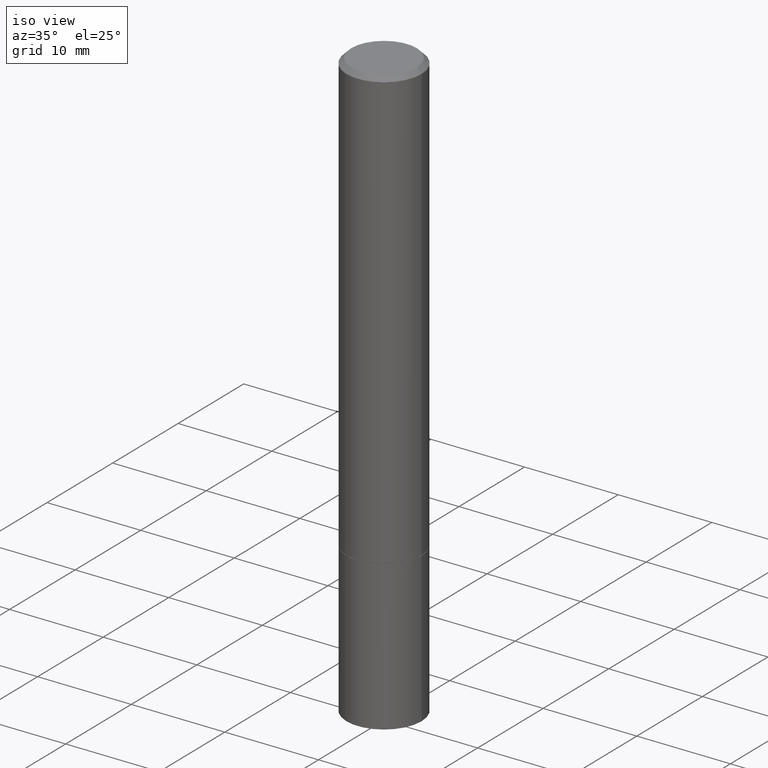
[diagram: clean part render]
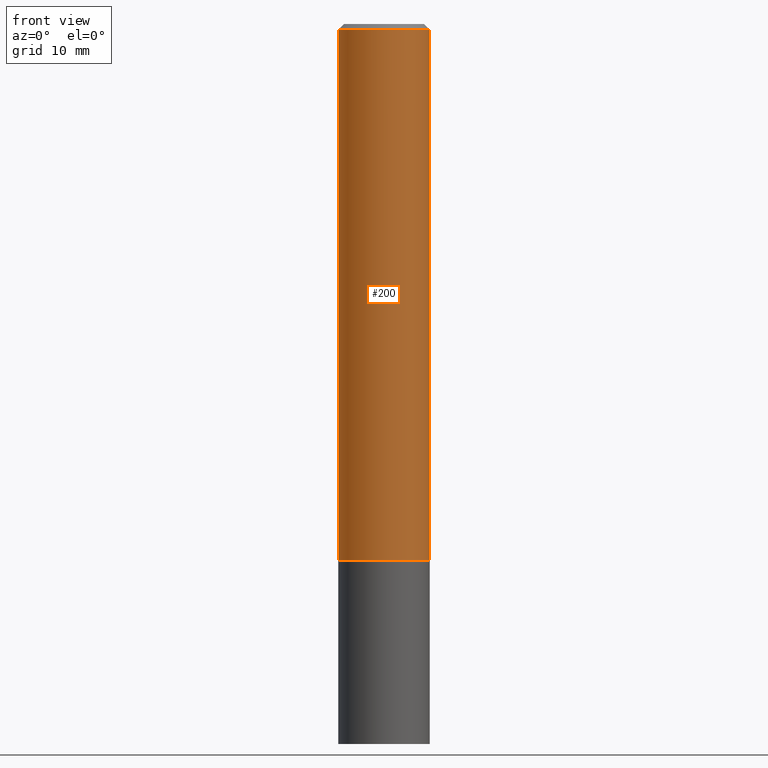
[diagram: tour spotlight — one face highlighted and labeled with its STEP entity id]
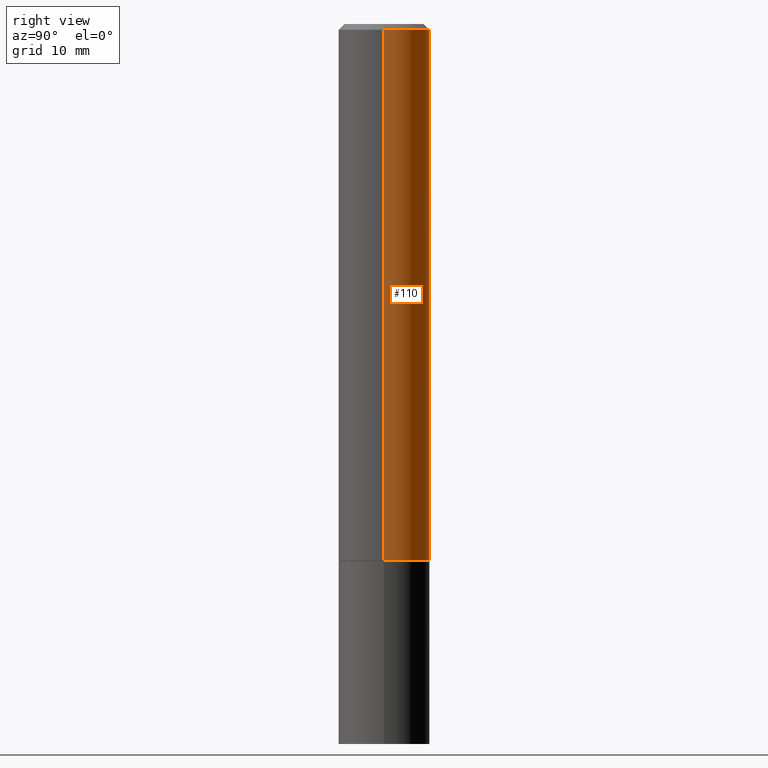
[diagram: tour spotlight — one face highlighted and labeled with its STEP entity id]
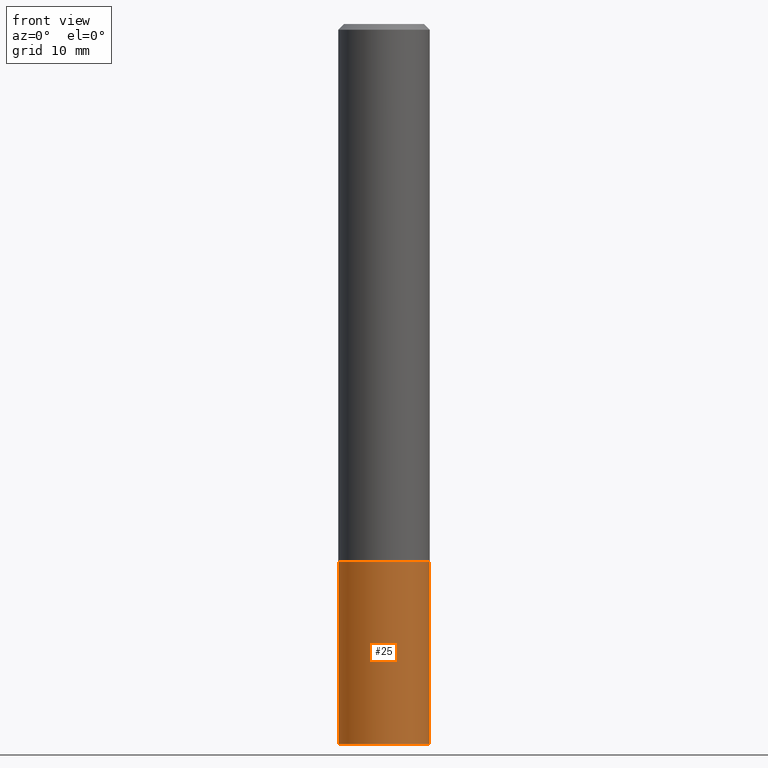
[diagram: tour spotlight — one face highlighted and labeled with its STEP entity id]
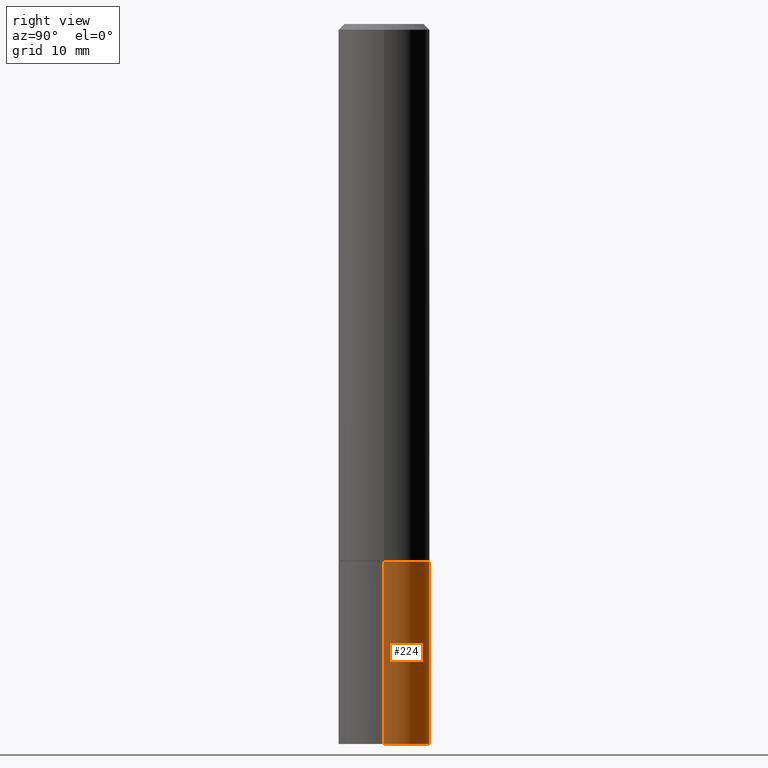
[diagram: tour spotlight — one face highlighted and labeled with its STEP entity id]
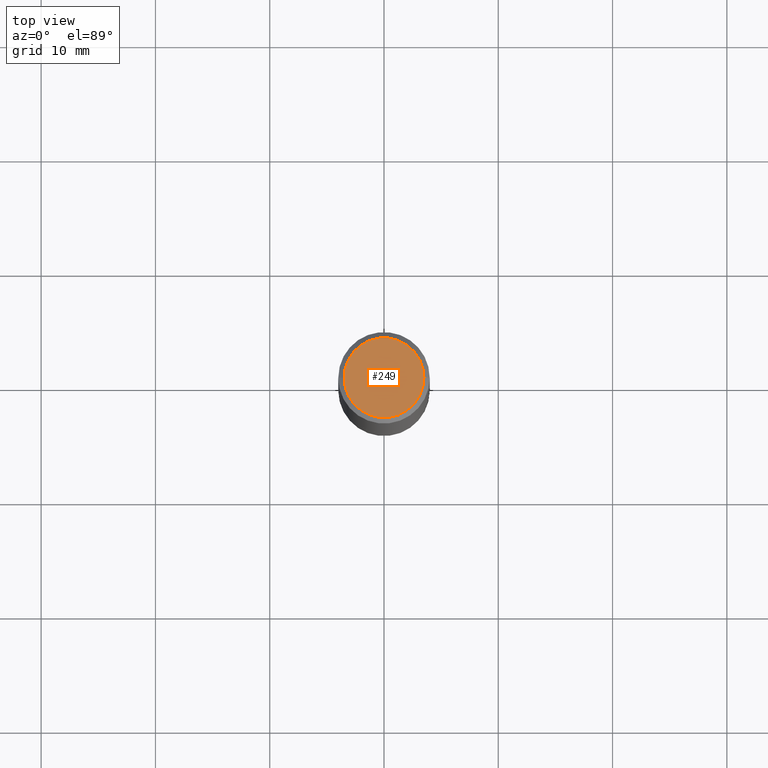
[diagram: tour spotlight — one face highlighted and labeled with its STEP entity id]
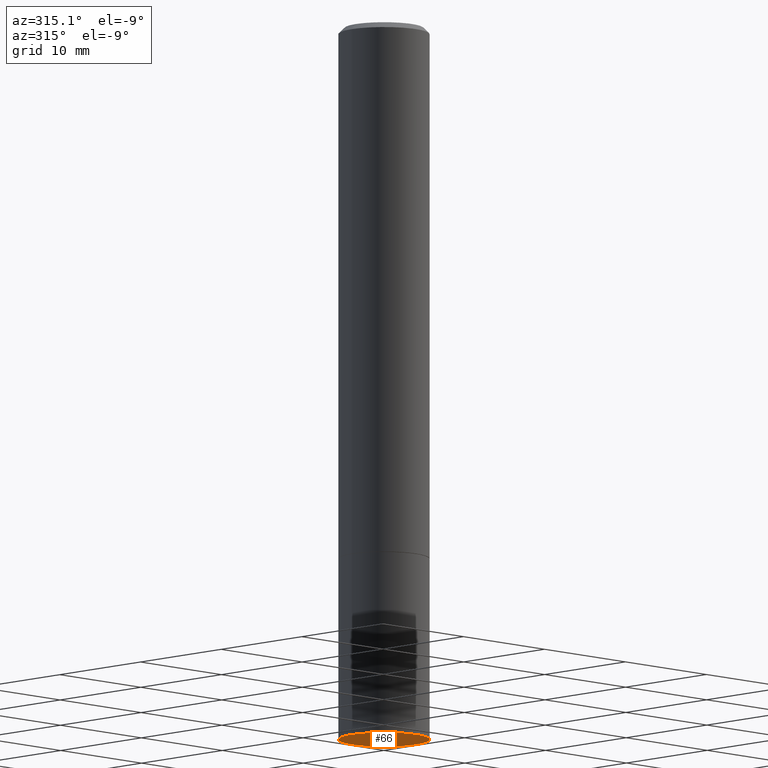
[diagram: tour spotlight — one face highlighted and labeled with its STEP entity id]
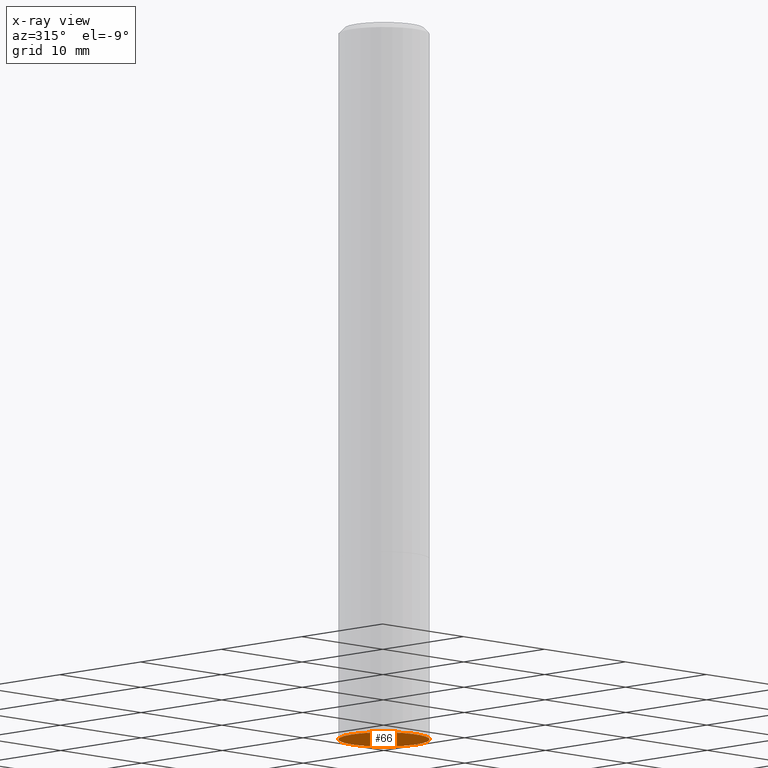
[diagram: x-ray of the same camera — body ghosted, this tour face saturated]
A machine part: a face-by-face anatomy tour. The part has 12 B-rep faces; the first image is the clean iso view, then the 6 largest visible faces are spotlighted one at a time (largest first), each with its STEP entity span.

Face 1 — front view, entity #200. In plain terms, the highlighted cylindrical surface (partial cylindrical patch) has radius 4.0005 mm, axis along (-0, 0, 1).
Definition (entity closure, byte-faithful):
#6 = CARTESIAN_POINT ( 'NONE',  ( 4.890937612370281041E-31, -6.982962677686302702E-17, -0.02000000000000003511 ) ) ;
#11 = EDGE_CURVE ( 'NONE', #80, #142, #336, .T. ) ;
#13 = CYLINDRICAL_SURFACE ( 'NONE', #55, 0.1574999999999998901 ) ;
#17 = CARTESIAN_POINT ( 'NONE',  ( 0.1574999999999998901, -1.099816621735586297E-15, 7.679978421878593829E-30 ) ) ;
#41 = EDGE_LOOP ( 'NONE', ( #161, #297, #130, #119 ) ) ;
#47 = DIRECTION ( 'NONE',  ( 1.000000000000000000, -6.982962677686266711E-15, 4.876176775795935793E-29 ) ) ;
#55 = AXIS2_PLACEMENT_3D ( 'NONE', #233, #351, #47 ) ;
#61 = DIRECTION ( 'NONE',  ( 1.000000000000000000, -6.982962677686265922E-15, 0.000000000000000000 ) ) ;
#70 = VERTEX_POINT ( 'NONE', #236 ) ;
#80 = VERTEX_POINT ( 'NONE', #153 ) ;
#82 = AXIS2_PLACEMENT_3D ( 'NONE', #6, #120, #61 ) ;
#87 = CARTESIAN_POINT ( 'NONE',  ( -0.1574999999999998901, 1.119104808822157012E-15, -7.747322767151471379E-30 ) ) ;
#89 = CIRCLE ( 'NONE', #82, 0.1574999999999998346 ) ;
#119 = ORIENTED_EDGE ( 'NONE', *, *, #178, .F. ) ;
#120 = DIRECTION ( 'NONE',  ( -2.445468806185136597E-29, 3.491481338843145583E-15, 1.000000000000000000 ) ) ;
#130 = ORIENTED_EDGE ( 'NONE', *, *, #309, .T. ) ;
#142 = VERTEX_POINT ( 'NONE', #292 ) ;
#153 = CARTESIAN_POINT ( 'NONE',  ( -0.1575000000000000011, -2.144382798594528569E-15, -1.849400000000000155 ) ) ;
#156 = FACE_OUTER_BOUND ( 'NONE', #41, .T. ) ;
#159 = VERTEX_POINT ( 'NONE', #206 ) ;
#161 = ORIENTED_EDGE ( 'NONE', *, *, #11, .F. ) ;
#175 = VECTOR ( 'NONE', #365, 39.37007874015748143 ) ;
#178 = EDGE_CURVE ( 'NONE', #142, #70, #89, .T. ) ;
#200 = ADVANCED_FACE ( 'NONE', ( #156 ), #13, .T. ) ;
#205 = EDGE_CURVE ( 'NONE', #80, #159, #339, .T. ) ;
#206 = CARTESIAN_POINT ( 'NONE',  ( 0.1575000000000000011, -7.556962209792101260E-15, -1.849400000000000155 ) ) ;
#218 = DIRECTION ( 'NONE',  ( -2.445468806185136597E-29, 3.491481338843145583E-15, 1.000000000000000000 ) ) ;
#233 = CARTESIAN_POINT ( 'NONE',  ( 0.000000000000000000, 0.000000000000000000, 0.000000000000000000 ) ) ;
#236 = CARTESIAN_POINT ( 'NONE',  ( 0.1574999999999998346, -1.150358061425878091E-15, -0.02000000000000003511 ) ) ;
#239 = VECTOR ( 'NONE', #240, 39.37007874015748143 ) ;
#240 = DIRECTION ( 'NONE',  ( -2.445468806185136877E-29, 3.491481338843145188E-15, 1.000000000000000000 ) ) ;
#242 = DIRECTION ( 'NONE',  ( 1.000000000000000000, -6.982962677686268288E-15, 0.000000000000000000 ) ) ;
#270 = AXIS2_PLACEMENT_3D ( 'NONE', #272, #218, #242 ) ;
#272 = CARTESIAN_POINT ( 'NONE',  ( 4.522650010158792351E-29, -6.457145588056513780E-15, -1.849400000000000155 ) ) ;
#292 = CARTESIAN_POINT ( 'NONE',  ( -0.1574999999999998346, 1.029986994958722604E-15, -0.02000000000000003511 ) ) ;
#297 = ORIENTED_EDGE ( 'NONE', *, *, #205, .T. ) ;
#309 = EDGE_CURVE ( 'NONE', #159, #70, #325, .T. ) ;
#325 = LINE ( 'NONE', #17, #239 ) ;
#336 = LINE ( 'NONE', #87, #175 ) ;
#339 = CIRCLE ( 'NONE', #270, 0.1575000000000000011 ) ;
#351 = DIRECTION ( 'NONE',  ( -2.445468806185136597E-29, 3.491481338843145583E-15, 1.000000000000000000 ) ) ;
#365 = DIRECTION ( 'NONE',  ( -2.445468806185136877E-29, 3.491481338843145188E-15, 1.000000000000000000 ) ) ;

Face 2 — right view, entity #110. In plain terms, the highlighted cylindrical surface (partial cylindrical patch) has radius 4.0005 mm, axis along (-0, 0, 1).
Definition (entity closure, byte-faithful):
#4 = ORIENTED_EDGE ( 'NONE', *, *, #348, .T. ) ;
#11 = EDGE_CURVE ( 'NONE', #80, #142, #336, .T. ) ;
#17 = CARTESIAN_POINT ( 'NONE',  ( 0.1574999999999998901, -1.099816621735586297E-15, 7.679978421878593829E-30 ) ) ;
#40 = CARTESIAN_POINT ( 'NONE',  ( 0.000000000000000000, 0.000000000000000000, 0.000000000000000000 ) ) ;
#68 = CIRCLE ( 'NONE', #256, 0.1574999999999998346 ) ;
#70 = VERTEX_POINT ( 'NONE', #236 ) ;
#80 = VERTEX_POINT ( 'NONE', #153 ) ;
#87 = CARTESIAN_POINT ( 'NONE',  ( -0.1574999999999998901, 1.119104808822157012E-15, -7.747322767151471379E-30 ) ) ;
#94 = AXIS2_PLACEMENT_3D ( 'NONE', #323, #244, #107 ) ;
#97 = DIRECTION ( 'NONE',  ( -2.445468806185136597E-29, 3.491481338843145583E-15, 1.000000000000000000 ) ) ;
#107 = DIRECTION ( 'NONE',  ( 1.000000000000000000, -6.982962677686268288E-15, 0.000000000000000000 ) ) ;
#110 = ADVANCED_FACE ( 'NONE', ( #210 ), #344, .T. ) ;
#127 = ORIENTED_EDGE ( 'NONE', *, *, #11, .T. ) ;
#142 = VERTEX_POINT ( 'NONE', #292 ) ;
#153 = CARTESIAN_POINT ( 'NONE',  ( -0.1575000000000000011, -2.144382798594528569E-15, -1.849400000000000155 ) ) ;
#157 = ORIENTED_EDGE ( 'NONE', *, *, #167, .F. ) ;
#159 = VERTEX_POINT ( 'NONE', #206 ) ;
#166 = ORIENTED_EDGE ( 'NONE', *, *, #309, .F. ) ;
#167 = EDGE_CURVE ( 'NONE', #70, #142, #68, .T. ) ;
#175 = VECTOR ( 'NONE', #365, 39.37007874015748143 ) ;
#181 = CARTESIAN_POINT ( 'NONE',  ( 4.890937612370281041E-31, -6.982962677686302702E-17, -0.02000000000000003511 ) ) ;
#206 = CARTESIAN_POINT ( 'NONE',  ( 0.1575000000000000011, -7.556962209792101260E-15, -1.849400000000000155 ) ) ;
#210 = FACE_OUTER_BOUND ( 'NONE', #243, .T. ) ;
#236 = CARTESIAN_POINT ( 'NONE',  ( 0.1574999999999998346, -1.150358061425878091E-15, -0.02000000000000003511 ) ) ;
#239 = VECTOR ( 'NONE', #240, 39.37007874015748143 ) ;
#240 = DIRECTION ( 'NONE',  ( -2.445468806185136877E-29, 3.491481338843145188E-15, 1.000000000000000000 ) ) ;
#243 = EDGE_LOOP ( 'NONE', ( #4, #127, #157, #166 ) ) ;
#244 = DIRECTION ( 'NONE',  ( -2.445468806185136597E-29, 3.491481338843145583E-15, 1.000000000000000000 ) ) ;
#256 = AXIS2_PLACEMENT_3D ( 'NONE', #181, #257, #321 ) ;
#257 = DIRECTION ( 'NONE',  ( -2.445468806185136597E-29, 3.491481338843145583E-15, 1.000000000000000000 ) ) ;
#260 = DIRECTION ( 'NONE',  ( 1.000000000000000000, -6.982962677686266711E-15, 4.876176775795935793E-29 ) ) ;
#292 = CARTESIAN_POINT ( 'NONE',  ( -0.1574999999999998346, 1.029986994958722604E-15, -0.02000000000000003511 ) ) ;
#298 = AXIS2_PLACEMENT_3D ( 'NONE', #40, #97, #260 ) ;
#309 = EDGE_CURVE ( 'NONE', #159, #70, #325, .T. ) ;
#321 = DIRECTION ( 'NONE',  ( 1.000000000000000000, -6.982962677686265922E-15, 0.000000000000000000 ) ) ;
#323 = CARTESIAN_POINT ( 'NONE',  ( 4.522650010158792351E-29, -6.457145588056513780E-15, -1.849400000000000155 ) ) ;
#325 = LINE ( 'NONE', #17, #239 ) ;
#336 = LINE ( 'NONE', #87, #175 ) ;
#344 = CYLINDRICAL_SURFACE ( 'NONE', #298, 0.1574999999999998901 ) ;
#348 = EDGE_CURVE ( 'NONE', #159, #80, #364, .T. ) ;
#364 = CIRCLE ( 'NONE', #94, 0.1575000000000000011 ) ;
#365 = DIRECTION ( 'NONE',  ( -2.445468806185136877E-29, 3.491481338843145188E-15, 1.000000000000000000 ) ) ;

Face 3 — front view, entity #25. In plain terms, the highlighted cylindrical surface (partial cylindrical patch) has radius 4.0005 mm, axis along (-0, 0, 1).
Definition (entity closure, byte-faithful):
#25 = ADVANCED_FACE ( 'NONE', ( #198 ), #333, .T. ) ;
#27 = CIRCLE ( 'NONE', #313, 0.1575000000000000011 ) ;
#32 = VERTEX_POINT ( 'NONE', #229 ) ;
#34 = DIRECTION ( 'NONE',  ( -2.445468806185136597E-29, 3.491481338843145583E-15, 1.000000000000000000 ) ) ;
#57 = EDGE_CURVE ( 'NONE', #315, #289, #288, .T. ) ;
#88 = VERTEX_POINT ( 'NONE', #158 ) ;
#91 = CARTESIAN_POINT ( 'NONE',  ( 0.000000000000000000, 0.000000000000000000, 0.000000000000000000 ) ) ;
#93 = DIRECTION ( 'NONE',  ( -2.445468806185136877E-29, 3.491481338843145188E-15, 1.000000000000000000 ) ) ;
#101 = AXIS2_PLACEMENT_3D ( 'NONE', #91, #280, #145 ) ;
#123 = LINE ( 'NONE', #207, #360 ) ;
#132 = CARTESIAN_POINT ( 'NONE',  ( -0.1575000000000000011, -6.441174308241848063E-15, -1.850400000000000267 ) ) ;
#134 = EDGE_CURVE ( 'NONE', #32, #88, #123, .T. ) ;
#145 = DIRECTION ( 'NONE',  ( 1.000000000000000000, -6.982962677686265922E-15, 4.876176775795935232E-29 ) ) ;
#155 = VECTOR ( 'NONE', #349, 39.37007874015748143 ) ;
#158 = CARTESIAN_POINT ( 'NONE',  ( 0.1575000000000000011, -7.560453691130944267E-15, -1.850400000000000267 ) ) ;
#165 = DIRECTION ( 'NONE',  ( -2.445468806185136597E-29, 3.491481338843145583E-15, 1.000000000000000000 ) ) ;
#180 = CARTESIAN_POINT ( 'NONE',  ( 4.525095478964977394E-29, -6.460637069395357576E-15, -1.850400000000000267 ) ) ;
#191 = ORIENTED_EDGE ( 'NONE', *, *, #193, .F. ) ;
#193 = EDGE_CURVE ( 'NONE', #289, #88, #27, .T. ) ;
#198 = FACE_OUTER_BOUND ( 'NONE', #204, .T. ) ;
#204 = EDGE_LOOP ( 'NONE', ( #250, #358, #268, #191 ) ) ;
#207 = CARTESIAN_POINT ( 'NONE',  ( 0.1575000000000000011, -1.099816621735586889E-15, 7.679978421878598033E-30 ) ) ;
#229 = CARTESIAN_POINT ( 'NONE',  ( 0.1575000000000000011, -9.759737786468242027E-15, -2.480300000000000171 ) ) ;
#241 = CARTESIAN_POINT ( 'NONE',  ( -0.1575000000000000011, -6.441174308241848063E-15, -2.480300000000000171 ) ) ;
#245 = CIRCLE ( 'NONE', #275, 0.1575000000000000011 ) ;
#247 = DIRECTION ( 'NONE',  ( 1.000000000000000000, -6.982962677686261977E-15, 0.000000000000000000 ) ) ;
#250 = ORIENTED_EDGE ( 'NONE', *, *, #57, .F. ) ;
#268 = ORIENTED_EDGE ( 'NONE', *, *, #134, .T. ) ;
#275 = AXIS2_PLACEMENT_3D ( 'NONE', #301, #165, #247 ) ;
#280 = DIRECTION ( 'NONE',  ( -2.445468806185136597E-29, 3.491481338843145583E-15, 1.000000000000000000 ) ) ;
#287 = DIRECTION ( 'NONE',  ( 1.000000000000000000, -6.982962677686268288E-15, 0.000000000000000000 ) ) ;
#288 = LINE ( 'NONE', #294, #155 ) ;
#289 = VERTEX_POINT ( 'NONE', #132 ) ;
#294 = CARTESIAN_POINT ( 'NONE',  ( -0.1575000000000000011, 1.119104808822157801E-15, -7.747322767151475583E-30 ) ) ;
#301 = CARTESIAN_POINT ( 'NONE',  ( 6.065496279980994755E-29, -8.659921164732655335E-15, -2.480300000000000171 ) ) ;
#313 = AXIS2_PLACEMENT_3D ( 'NONE', #180, #34, #287 ) ;
#315 = VERTEX_POINT ( 'NONE', #241 ) ;
#333 = CYLINDRICAL_SURFACE ( 'NONE', #101, 0.1575000000000000011 ) ;
#341 = EDGE_CURVE ( 'NONE', #315, #32, #245, .T. ) ;
#349 = DIRECTION ( 'NONE',  ( -2.445468806185136877E-29, 3.491481338843145188E-15, 1.000000000000000000 ) ) ;
#358 = ORIENTED_EDGE ( 'NONE', *, *, #341, .T. ) ;
#360 = VECTOR ( 'NONE', #93, 39.37007874015748143 ) ;

Face 4 — right view, entity #224. In plain terms, the highlighted cylindrical surface (partial cylindrical patch) has radius 4.0005 mm, axis along (-0, 0, 1).
Definition (entity closure, byte-faithful):
#7 = DIRECTION ( 'NONE',  ( -2.445468806185136597E-29, 3.491481338843145583E-15, 1.000000000000000000 ) ) ;
#9 = CARTESIAN_POINT ( 'NONE',  ( 6.065496279980994755E-29, -8.659921164732655335E-15, -2.480300000000000171 ) ) ;
#10 = CIRCLE ( 'NONE', #143, 0.1575000000000000011 ) ;
#32 = VERTEX_POINT ( 'NONE', #229 ) ;
#42 = CARTESIAN_POINT ( 'NONE',  ( 0.000000000000000000, 0.000000000000000000, 0.000000000000000000 ) ) ;
#45 = DIRECTION ( 'NONE',  ( 1.000000000000000000, -6.982962677686265922E-15, 4.876176775795935232E-29 ) ) ;
#57 = EDGE_CURVE ( 'NONE', #315, #289, #288, .T. ) ;
#88 = VERTEX_POINT ( 'NONE', #158 ) ;
#92 = DIRECTION ( 'NONE',  ( 1.000000000000000000, -6.982962677686261977E-15, 0.000000000000000000 ) ) ;
#93 = DIRECTION ( 'NONE',  ( -2.445468806185136877E-29, 3.491481338843145188E-15, 1.000000000000000000 ) ) ;
#105 = ORIENTED_EDGE ( 'NONE', *, *, #128, .T. ) ;
#123 = LINE ( 'NONE', #207, #360 ) ;
#128 = EDGE_CURVE ( 'NONE', #32, #315, #10, .T. ) ;
#132 = CARTESIAN_POINT ( 'NONE',  ( -0.1575000000000000011, -6.441174308241848063E-15, -1.850400000000000267 ) ) ;
#134 = EDGE_CURVE ( 'NONE', #32, #88, #123, .T. ) ;
#143 = AXIS2_PLACEMENT_3D ( 'NONE', #9, #7, #92 ) ;
#155 = VECTOR ( 'NONE', #349, 39.37007874015748143 ) ;
#158 = CARTESIAN_POINT ( 'NONE',  ( 0.1575000000000000011, -7.560453691130944267E-15, -1.850400000000000267 ) ) ;
#163 = AXIS2_PLACEMENT_3D ( 'NONE', #42, #269, #45 ) ;
#174 = EDGE_CURVE ( 'NONE', #88, #289, #346, .T. ) ;
#182 = ORIENTED_EDGE ( 'NONE', *, *, #174, .F. ) ;
#183 = DIRECTION ( 'NONE',  ( 1.000000000000000000, -6.982962677686268288E-15, 0.000000000000000000 ) ) ;
#207 = CARTESIAN_POINT ( 'NONE',  ( 0.1575000000000000011, -1.099816621735586889E-15, 7.679978421878598033E-30 ) ) ;
#208 = ORIENTED_EDGE ( 'NONE', *, *, #134, .F. ) ;
#209 = AXIS2_PLACEMENT_3D ( 'NONE', #312, #317, #183 ) ;
#217 = FACE_OUTER_BOUND ( 'NONE', #305, .T. ) ;
#219 = ORIENTED_EDGE ( 'NONE', *, *, #57, .T. ) ;
#224 = ADVANCED_FACE ( 'NONE', ( #217 ), #326, .T. ) ;
#229 = CARTESIAN_POINT ( 'NONE',  ( 0.1575000000000000011, -9.759737786468242027E-15, -2.480300000000000171 ) ) ;
#241 = CARTESIAN_POINT ( 'NONE',  ( -0.1575000000000000011, -6.441174308241848063E-15, -2.480300000000000171 ) ) ;
#269 = DIRECTION ( 'NONE',  ( -2.445468806185136597E-29, 3.491481338843145583E-15, 1.000000000000000000 ) ) ;
#288 = LINE ( 'NONE', #294, #155 ) ;
#289 = VERTEX_POINT ( 'NONE', #132 ) ;
#294 = CARTESIAN_POINT ( 'NONE',  ( -0.1575000000000000011, 1.119104808822157801E-15, -7.747322767151475583E-30 ) ) ;
#305 = EDGE_LOOP ( 'NONE', ( #105, #219, #182, #208 ) ) ;
#312 = CARTESIAN_POINT ( 'NONE',  ( 4.525095478964977394E-29, -6.460637069395357576E-15, -1.850400000000000267 ) ) ;
#315 = VERTEX_POINT ( 'NONE', #241 ) ;
#317 = DIRECTION ( 'NONE',  ( -2.445468806185136597E-29, 3.491481338843145583E-15, 1.000000000000000000 ) ) ;
#326 = CYLINDRICAL_SURFACE ( 'NONE', #163, 0.1575000000000000011 ) ;
#346 = CIRCLE ( 'NONE', #209, 0.1575000000000000011 ) ;
#349 = DIRECTION ( 'NONE',  ( -2.445468806185136877E-29, 3.491481338843145188E-15, 1.000000000000000000 ) ) ;
#360 = VECTOR ( 'NONE', #93, 39.37007874015748143 ) ;

Face 5 — top view, entity #249. In plain terms, the highlighted planar face has unit normal (0, -0, -1).
Definition (entity closure, byte-faithful):
#20 = PLANE ( 'NONE',  #112 ) ;
#23 = ORIENTED_EDGE ( 'NONE', *, *, #316, .T. ) ;
#36 = AXIS2_PLACEMENT_3D ( 'NONE', #356, #214, #194 ) ;
#43 = CIRCLE ( 'NONE', #36, 0.1374999999999997891 ) ;
#73 = CARTESIAN_POINT ( 'NONE',  ( -0.1374999999999997891, 9.950721815702915469E-16, 4.268512490093574228E-18 ) ) ;
#77 = CARTESIAN_POINT ( 'NONE',  ( 0.1374999999999997891, -1.046838268059731308E-15, 4.268512490107428597E-18 ) ) ;
#79 = DIRECTION ( 'NONE',  ( 2.438088387897960049E-29, -3.491481338843145188E-15, -1.000000000000000000 ) ) ;
#108 = EDGE_LOOP ( 'NONE', ( #212, #23 ) ) ;
#112 = AXIS2_PLACEMENT_3D ( 'NONE', #135, #79, #357 ) ;
#135 = CARTESIAN_POINT ( 'NONE',  ( 9.601573681818600950E-16, 0.1374999999999997891, -4.779444278458816091E-16 ) ) ;
#137 = DIRECTION ( 'NONE',  ( -2.445468806185136597E-29, 3.491481338843145583E-15, 1.000000000000000000 ) ) ;
#194 = DIRECTION ( 'NONE',  ( 1.000000000000000000, -6.982962677686267499E-15, 4.876173381029107889E-29 ) ) ;
#195 = DIRECTION ( 'NONE',  ( 1.000000000000000000, -6.982962677686267499E-15, 4.876173381029107889E-29 ) ) ;
#202 = CIRCLE ( 'NONE', #230, 0.1374999999999997891 ) ;
#212 = ORIENTED_EDGE ( 'NONE', *, *, #304, .T. ) ;
#213 = CARTESIAN_POINT ( 'NONE',  ( -1.043851414335219820E-46, 1.490343170380447200E-32, 4.268512490100411279E-18 ) ) ;
#214 = DIRECTION ( 'NONE',  ( -2.445468806185136597E-29, 3.491481338843145583E-15, 1.000000000000000000 ) ) ;
#230 = AXIS2_PLACEMENT_3D ( 'NONE', #213, #137, #195 ) ;
#234 = VERTEX_POINT ( 'NONE', #77 ) ;
#249 = ADVANCED_FACE ( 'NONE', ( #361 ), #20, .F. ) ;
#304 = EDGE_CURVE ( 'NONE', #353, #234, #202, .T. ) ;
#316 = EDGE_CURVE ( 'NONE', #234, #353, #43, .T. ) ;
#353 = VERTEX_POINT ( 'NONE', #73 ) ;
#356 = CARTESIAN_POINT ( 'NONE',  ( -1.043851414335219820E-46, 1.490343170380447200E-32, 4.268512490100411279E-18 ) ) ;
#357 = DIRECTION ( 'NONE',  ( -1.000000000000000000, 6.982962677686265922E-15, -4.876176775795935793E-29 ) ) ;
#361 = FACE_OUTER_BOUND ( 'NONE', #108, .T. ) ;

Face 6 — auxiliary view, entity #66. An x-ray twin of the same camera follows (body ghosted, this face saturated) — the face is partly hidden behind the body. In plain terms, the highlighted planar face has unit normal (0, -0, -1).
Definition (entity closure, byte-faithful):
#7 = DIRECTION ( 'NONE',  ( -2.445468806185136597E-29, 3.491481338843145583E-15, 1.000000000000000000 ) ) ;
#9 = CARTESIAN_POINT ( 'NONE',  ( 6.065496279980994755E-29, -8.659921164732655335E-15, -2.480300000000000171 ) ) ;
#10 = CIRCLE ( 'NONE', #143, 0.1575000000000000011 ) ;
#19 = EDGE_LOOP ( 'NONE', ( #67, #227 ) ) ;
#29 = CARTESIAN_POINT ( 'NONE',  ( 1.099816621735647434E-15, 0.1574999999999913136, -2.480300000000001059 ) ) ;
#32 = VERTEX_POINT ( 'NONE', #229 ) ;
#65 = DIRECTION ( 'NONE',  ( -1.000000000000000000, 6.982962677686265922E-15, -4.876176775795935793E-29 ) ) ;
#66 = ADVANCED_FACE ( 'NONE', ( #152 ), #126, .T. ) ;
#67 = ORIENTED_EDGE ( 'NONE', *, *, #128, .F. ) ;
#92 = DIRECTION ( 'NONE',  ( 1.000000000000000000, -6.982962677686261977E-15, 0.000000000000000000 ) ) ;
#117 = AXIS2_PLACEMENT_3D ( 'NONE', #29, #228, #65 ) ;
#126 = PLANE ( 'NONE',  #117 ) ;
#128 = EDGE_CURVE ( 'NONE', #32, #315, #10, .T. ) ;
#143 = AXIS2_PLACEMENT_3D ( 'NONE', #9, #7, #92 ) ;
#152 = FACE_OUTER_BOUND ( 'NONE', #19, .T. ) ;
#165 = DIRECTION ( 'NONE',  ( -2.445468806185136597E-29, 3.491481338843145583E-15, 1.000000000000000000 ) ) ;
#227 = ORIENTED_EDGE ( 'NONE', *, *, #341, .F. ) ;
#228 = DIRECTION ( 'NONE',  ( 2.438088387897960049E-29, -3.491481338843145188E-15, -1.000000000000000000 ) ) ;
#229 = CARTESIAN_POINT ( 'NONE',  ( 0.1575000000000000011, -9.759737786468242027E-15, -2.480300000000000171 ) ) ;
#241 = CARTESIAN_POINT ( 'NONE',  ( -0.1575000000000000011, -6.441174308241848063E-15, -2.480300000000000171 ) ) ;
#245 = CIRCLE ( 'NONE', #275, 0.1575000000000000011 ) ;
#247 = DIRECTION ( 'NONE',  ( 1.000000000000000000, -6.982962677686261977E-15, 0.000000000000000000 ) ) ;
#275 = AXIS2_PLACEMENT_3D ( 'NONE', #301, #165, #247 ) ;
#301 = CARTESIAN_POINT ( 'NONE',  ( 6.065496279980994755E-29, -8.659921164732655335E-15, -2.480300000000000171 ) ) ;
#315 = VERTEX_POINT ( 'NONE', #241 ) ;
#341 = EDGE_CURVE ( 'NONE', #315, #32, #245, .T. ) ;